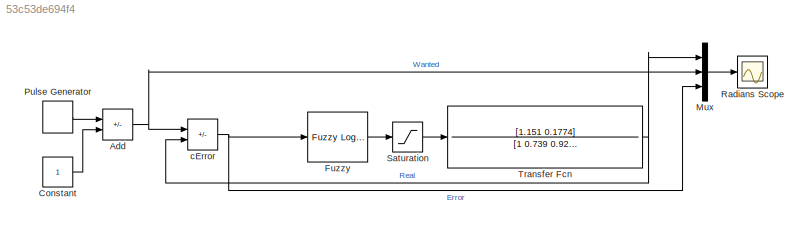
MODEL slx_53c53de694f4
KIND model
CONFIG AbsTol = auto
CONFIG EnableMultiTasking = off
CONFIG FixedStep = auto
CONFIG MaxStep = auto
CONFIG MinStep = auto
CONFIG RelTol = 1e-3
CONFIG SampleTimeConstraint = Unconstrained
CONFIG SolverName = VariableStepAuto
CONFIG StartTime = 0.0
CONFIG StopTime = 450
BLOCK [Sum] Add
  IconShape = rectangular
  Inputs = +-
BLOCK [Constant] Constant
BLOCK [Reference] Fuzzy  REF=fuzblock/Fuzzy Logic   (lib defined in mdl_858b3b3e7478)
Controller 
with Ruleviewer
  SourceBlock = fuzblock/Fuzzy Logic \nController \nwith Ruleviewer
  SourceType = Fuzzy Inference System
BLOCK [Mux] Mux
  DisplayOption = bar
  Inputs = 3
BLOCK [DiscretePulseGenerator] Pulse Generator
  Amplitude = 2
  Period = 500
  PulseType = Time based
  PulseWidth = 50
BLOCK [Scope] Radians Scope
  Floating = off
  NumInputPorts = 1
  ScopeSpecificationString = Simulink.scopes.TimeScopeBlockCfg('CurrentConfiguration', extmgr.ConfigurationSet(extmgr.Configuration('Core','General UI',true),extmgr.Configuration('Core','Source UI',true),extmgr.Configuration('Sources','WiredSimulink',true),extmgr.Configuration('Visuals','Time Domain',true,'SerializedDisplays',{struct('MinYLimReal','-2','MaxYLimReal','2','YLabelReal','','MinYLimMag','0.00000','MaxYLimMag','2.3...<+1473ch>
BLOCK [Saturate] Saturation
BLOCK [TransferFcn] Transfer Fcn
  Denominator = [1 0.739 0.921146 0]
  Numerator = [1.151 0.1774]
BLOCK [Sum] cError
  IconShape = rectangular
  Inputs = +-
NET Add:1 -> Mux:2, cError:1
LINE Constant:1 -> Add:2
LINE Fuzzy:1 -> Saturation:1
LINE Mux:1 -> Radians Scope:1
LINE Pulse Generator:1 -> Add:1
LINE Saturation:1 -> Transfer Fcn:1
NET Transfer Fcn:1 -> Mux:1, cError:2
NET cError:1 -> Fuzzy:1, Mux:3
note: NET lines group one-source signal fan-out (src -> all destinations, sorted); 1:1 wires keep LINE
